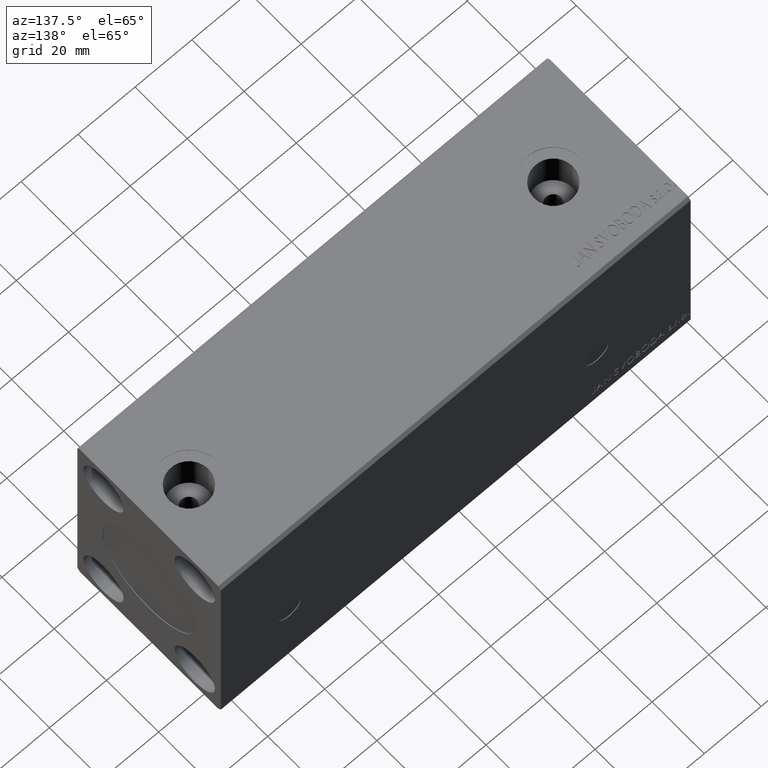
[diagram: clean part render]
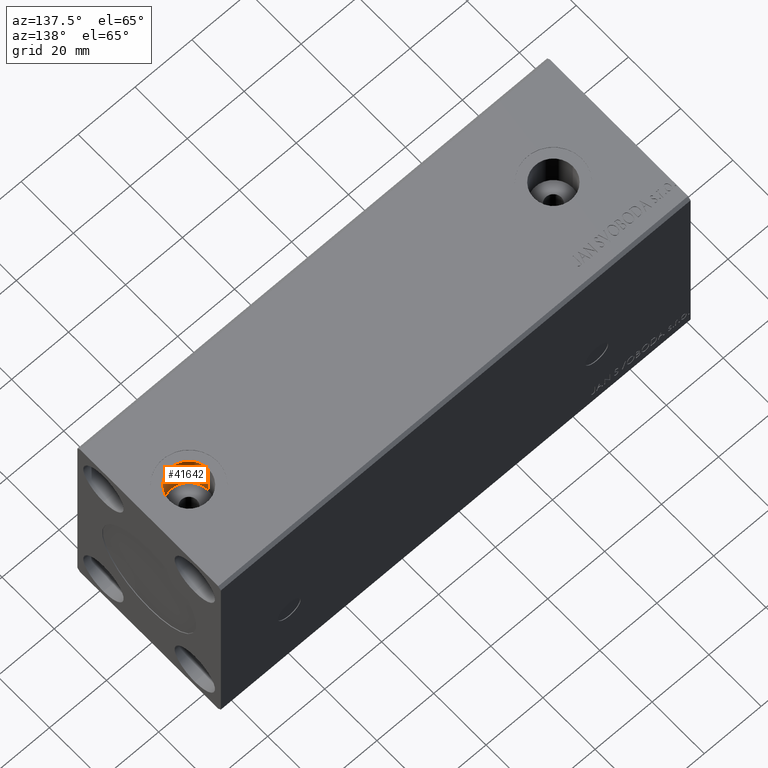
[diagram: same view with one face highlighted and labeled with its STEP entity id]
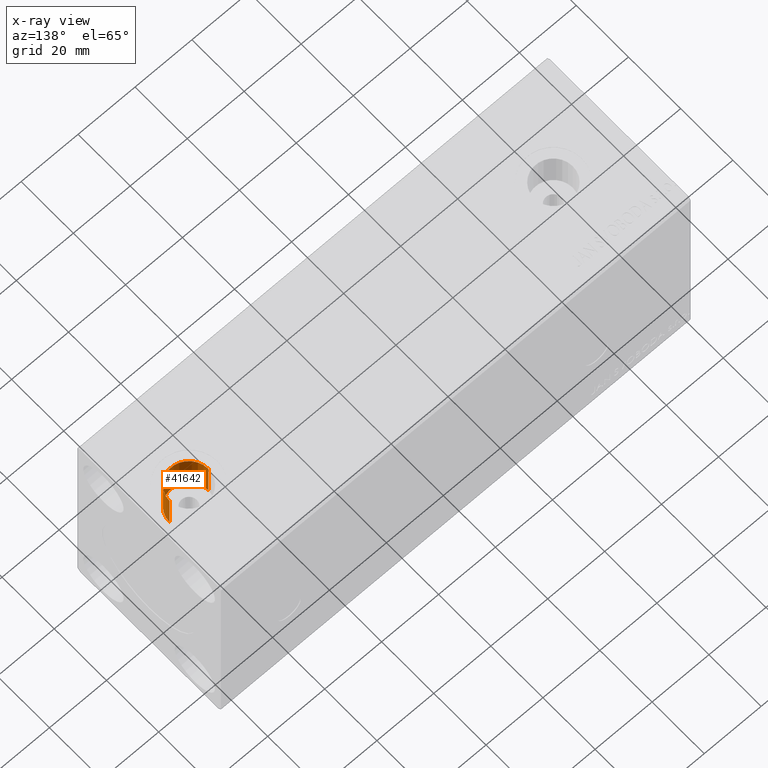
[diagram: x-ray of the same camera — body ghosted, the highlighted face saturated]
A machine part, auxiliary view. The second image highlights one B-rep face of the part: STEP entity #41642.
The next image is the same camera in x-ray: the body ghosted, the highlighted face saturated — about 0% of this face is hidden behind the body in this view.
In plain terms, the highlighted cylindrical surface (edge-blend (fillet) strip) has radius 6.8 mm, axis along (-0, -0, 1).
Its self-contained STEP definition (entity closure, byte-faithful):
#26 = CARTESIAN_POINT ( 'NONE',  ( 144.1999999999999886, 8.327598234201995202E-16, 24.24000000000000554 ) ) ;
#192 = CARTESIAN_POINT ( 'NONE',  ( 144.1999999999999886, 8.327598234201997174E-16, 24.24000000000000554 ) ) ;
#2448 = CIRCLE ( 'NONE', #3126, 6.800000000000000711 ) ;
#3126 = AXIS2_PLACEMENT_3D ( 'NONE', #20586, #33926, #39959 ) ;
#4036 = DIRECTION ( 'NONE',  ( -0.000000000000000000, -0.000000000000000000, 1.000000000000000000 ) ) ;
#5088 = VERTEX_POINT ( 'NONE', #41190 ) ;
#6414 = ORIENTED_EDGE ( 'NONE', *, *, #18874, .T. ) ;
#8161 = ORIENTED_EDGE ( 'NONE', *, *, #27429, .T. ) ;
#9901 = FACE_OUTER_BOUND ( 'NONE', #38555, .T. ) ;
#10618 = DIRECTION ( 'NONE',  ( 1.000000000000000000, 0.000000000000000000, 0.000000000000000000 ) ) ;
#12219 = AXIS2_PLACEMENT_3D ( 'NONE', #39898, #26769, #10618 ) ;
#12889 = CARTESIAN_POINT ( 'NONE',  ( 157.7999999999999829, 0.000000000000000000, 24.24000000000000554 ) ) ;
#13745 = CARTESIAN_POINT ( 'NONE',  ( 157.7999999999999829, 0.000000000000000000, 24.24000000000000554 ) ) ;
#16108 = VECTOR ( 'NONE', #20240, 1000.000000000000000 ) ;
#16142 = DIRECTION ( 'NONE',  ( 1.000000000000000000, 0.000000000000000000, 0.000000000000000000 ) ) ;
#17465 = VERTEX_POINT ( 'NONE', #26 ) ;
#18874 = EDGE_CURVE ( 'NONE', #17465, #21335, #29931, .T. ) ;
#19374 = CYLINDRICAL_SURFACE ( 'NONE', #20542, 6.800000000000000711 ) ;
#19647 = ORIENTED_EDGE ( 'NONE', *, *, #37358, .F. ) ;
#20240 = DIRECTION ( 'NONE',  ( -0.000000000000000000, -0.000000000000000000, 1.000000000000000000 ) ) ;
#20329 = VECTOR ( 'NONE', #4036, 1000.000000000000000 ) ;
#20542 = AXIS2_PLACEMENT_3D ( 'NONE', #29708, #32516, #16142 ) ;
#20586 = CARTESIAN_POINT ( 'NONE',  ( 151.0000000000000000, 0.000000000000000000, 37.40000000000000568 ) ) ;
#21335 = VERTEX_POINT ( 'NONE', #39272 ) ;
#26769 = DIRECTION ( 'NONE',  ( 0.000000000000000000, 0.000000000000000000, 1.000000000000000000 ) ) ;
#27082 = LINE ( 'NONE', #13745, #20329 ) ;
#27133 = EDGE_CURVE ( 'NONE', #35155, #5088, #27082, .T. ) ;
#27332 = CIRCLE ( 'NONE', #12219, 6.800000000000000711 ) ;
#27429 = EDGE_CURVE ( 'NONE', #21335, #5088, #2448, .T. ) ;
#29708 = CARTESIAN_POINT ( 'NONE',  ( 151.0000000000000000, 0.000000000000000000, 24.24000000000000554 ) ) ;
#29931 = LINE ( 'NONE', #192, #16108 ) ;
#32516 = DIRECTION ( 'NONE',  ( -0.000000000000000000, -0.000000000000000000, 1.000000000000000000 ) ) ;
#33926 = DIRECTION ( 'NONE',  ( 0.000000000000000000, 0.000000000000000000, 1.000000000000000000 ) ) ;
#35155 = VERTEX_POINT ( 'NONE', #12889 ) ;
#37358 = EDGE_CURVE ( 'NONE', #17465, #35155, #27332, .T. ) ;
#38555 = EDGE_LOOP ( 'NONE', ( #19647, #6414, #8161, #42521 ) ) ;
#39272 = CARTESIAN_POINT ( 'NONE',  ( 144.1999999999999886, 8.327598234201995202E-16, 37.40000000000000568 ) ) ;
#39898 = CARTESIAN_POINT ( 'NONE',  ( 151.0000000000000000, 0.000000000000000000, 24.24000000000000554 ) ) ;
#39959 = DIRECTION ( 'NONE',  ( 1.000000000000000000, 0.000000000000000000, 0.000000000000000000 ) ) ;
#41190 = CARTESIAN_POINT ( 'NONE',  ( 157.7999999999999829, 0.000000000000000000, 37.40000000000000568 ) ) ;
#41642 = ADVANCED_FACE ( 'NONE', ( #9901 ), #19374, .F. ) ;
#42521 = ORIENTED_EDGE ( 'NONE', *, *, #27133, .F. ) ;